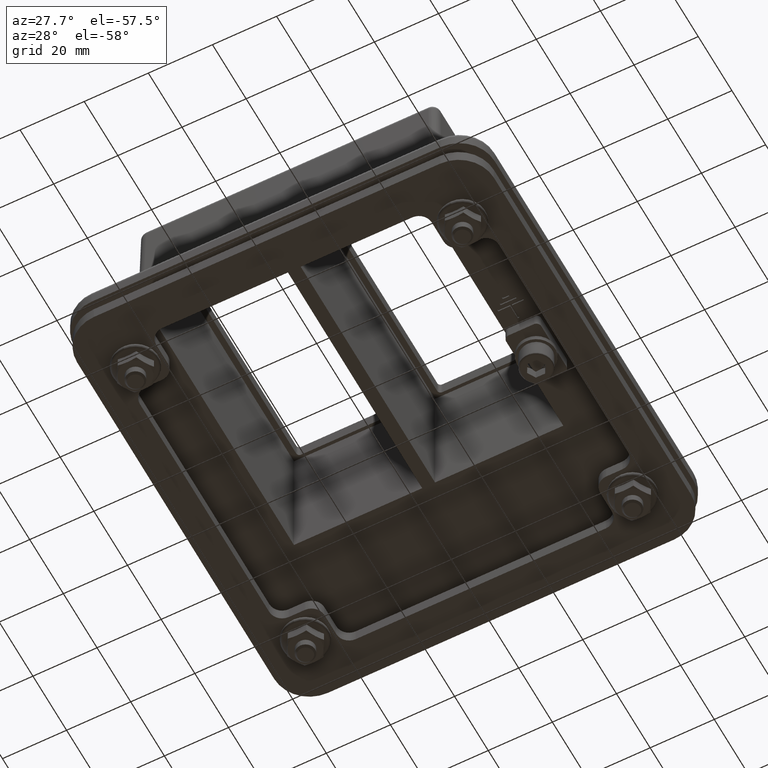
[diagram: clean part render]
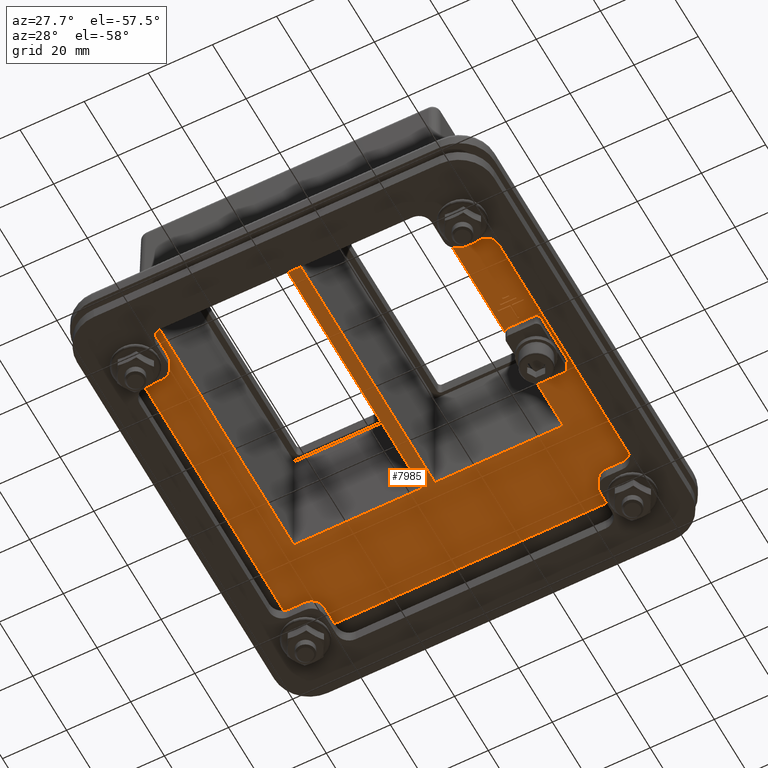
[diagram: same view with one face highlighted and labeled with its STEP entity id]
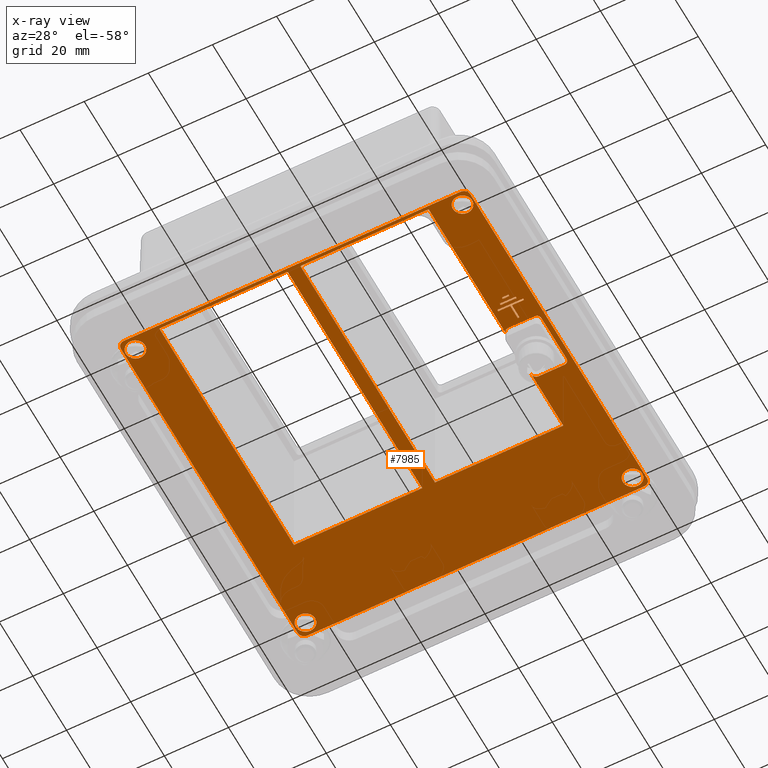
[diagram: x-ray of the same camera — body ghosted, the highlighted face saturated]
A machine part, auxiliary view. The second image highlights one B-rep face of the part: STEP entity #7985.
The next image is the same camera in x-ray: the body ghosted, the highlighted face saturated — about 0% of this face is hidden behind the body in this view.
In plain terms, the highlighted planar face has unit normal (0, 0, -1).
Its self-contained STEP definition (entity closure, byte-faithful):
#181=ELLIPSE('',#8621,1.50011423298243,1.5);
#183=ELLIPSE('',#8624,1.50011423298243,1.5);
#185=ELLIPSE('',#8628,1.50011423298243,1.5);
#187=ELLIPSE('',#8631,1.50011423298243,1.5);
#802=LINE('',#14308,#1446);
#805=LINE('',#14313,#1449);
#807=LINE('',#14317,#1451);
#809=LINE('',#14321,#1453);
#811=LINE('',#14325,#1455);
#813=LINE('',#14329,#1457);
#815=LINE('',#14333,#1459);
#817=LINE('',#14336,#1461);
#822=LINE('',#14349,#1466);
#825=LINE('',#14354,#1469);
#827=LINE('',#14358,#1471);
#829=LINE('',#14361,#1473);
#834=LINE('',#14374,#1478);
#837=LINE('',#14379,#1481);
#839=LINE('',#14383,#1483);
#841=LINE('',#14386,#1485);
#842=LINE('',#14390,#1486);
#848=LINE('',#14410,#1492);
#856=LINE('',#14434,#1500);
#863=LINE('',#14447,#1507);
#864=LINE('',#14449,#1508);
#875=LINE('',#14475,#1519);
#877=LINE('',#14479,#1521);
#879=LINE('',#14485,#1523);
#882=LINE('',#14491,#1526);
#911=LINE('',#14558,#1555);
#912=LINE('',#14564,#1556);
#913=LINE('',#14568,#1557);
#914=LINE('',#14572,#1558);
#915=LINE('',#14575,#1559);
#916=LINE('',#14576,#1560);
#917=LINE('',#14577,#1561);
#1446=VECTOR('',#10342,10.);
#1449=VECTOR('',#10347,10.);
#1451=VECTOR('',#10351,10.);
#1453=VECTOR('',#10355,10.);
#1455=VECTOR('',#10359,10.);
#1457=VECTOR('',#10363,10.);
#1459=VECTOR('',#10367,10.);
#1461=VECTOR('',#10371,10.);
#1466=VECTOR('',#10380,10.);
#1469=VECTOR('',#10385,10.);
#1471=VECTOR('',#10389,10.);
#1473=VECTOR('',#10393,10.);
#1478=VECTOR('',#10402,10.);
#1481=VECTOR('',#10407,10.);
#1483=VECTOR('',#10411,10.);
#1485=VECTOR('',#10415,10.);
#1486=VECTOR('',#10418,10.);
#1492=VECTOR('',#10438,10.);
#1500=VECTOR('',#10460,10.);
#1507=VECTOR('',#10471,10.);
#1508=VECTOR('',#10472,10.);
#1519=VECTOR('',#10493,10.);
#1521=VECTOR('',#10497,10.);
#1523=VECTOR('',#10501,10.);
#1526=VECTOR('',#10506,10.);
#1555=VECTOR('',#10585,10.);
#1556=VECTOR('',#10590,10.);
#1557=VECTOR('',#10593,10.);
#1558=VECTOR('',#10596,10.);
#1559=VECTOR('',#10599,10.);
#1560=VECTOR('',#10600,10.);
#1561=VECTOR('',#10601,10.);
#1747=FACE_BOUND('',#2650,.T.);
#1748=FACE_BOUND('',#2651,.T.);
#1749=FACE_BOUND('',#2652,.T.);
#1750=FACE_BOUND('',#2653,.T.);
#1751=FACE_BOUND('',#2654,.T.);
#1752=FACE_BOUND('',#2655,.T.);
#1753=FACE_BOUND('',#2656,.T.);
#1754=FACE_BOUND('',#2657,.T.);
#1755=FACE_BOUND('',#2658,.T.);
#2170=FACE_OUTER_BOUND('',#2649,.T.);
#2649=EDGE_LOOP('',(#6714,#6715,#6716,#6717,#6718,#6719,#6720,#6721));
#2650=EDGE_LOOP('',(#6722));
#2651=EDGE_LOOP('',(#6723));
#2652=EDGE_LOOP('',(#6724));
#2653=EDGE_LOOP('',(#6725));
#2654=EDGE_LOOP('',(#6726,#6727,#6728,#6729));
#2655=EDGE_LOOP('',(#6730,#6731,#6732,#6733));
#2656=EDGE_LOOP('',(#6734,#6735,#6736,#6737));
#2657=EDGE_LOOP('',(#6738,#6739,#6740,#6741,#6742,#6743,#6744,#6745));
#2658=EDGE_LOOP('',(#6746,#6747,#6748,#6749,#6750,#6751,#6752,#6753,#6754,
#6755,#6756,#6757));
#2705=CIRCLE('',#8068,3.);
#2737=CIRCLE('',#8118,3.);
#2750=CIRCLE('',#8148,3.);
#2783=CIRCLE('',#8235,3.);
#2926=CIRCLE('',#8670,2.);
#2927=CIRCLE('',#8671,1.99999999999999);
#2928=CIRCLE('',#8672,1.99999999999999);
#2929=CIRCLE('',#8673,1.99999999999999);
#2969=VERTEX_POINT('',#10840);
#3028=VERTEX_POINT('',#11027);
#3052=VERTEX_POINT('',#11143);
#3112=VERTEX_POINT('',#11404);
#3518=VERTEX_POINT('',#14306);
#3519=VERTEX_POINT('',#14307);
#3520=VERTEX_POINT('',#14312);
#3521=VERTEX_POINT('',#14316);
#3522=VERTEX_POINT('',#14320);
#3523=VERTEX_POINT('',#14324);
#3524=VERTEX_POINT('',#14328);
#3525=VERTEX_POINT('',#14332);
#3530=VERTEX_POINT('',#14347);
#3531=VERTEX_POINT('',#14348);
#3532=VERTEX_POINT('',#14353);
#3533=VERTEX_POINT('',#14357);
#3538=VERTEX_POINT('',#14372);
#3539=VERTEX_POINT('',#14373);
#3540=VERTEX_POINT('',#14378);
#3541=VERTEX_POINT('',#14382);
#3542=VERTEX_POINT('',#14388);
#3543=VERTEX_POINT('',#14389);
#3546=VERTEX_POINT('',#14397);
#3548=VERTEX_POINT('',#14403);
#3550=VERTEX_POINT('',#14409);
#3554=VERTEX_POINT('',#14419);
#3556=VERTEX_POINT('',#14425);
#3557=VERTEX_POINT('',#14426);
#3563=VERTEX_POINT('',#14445);
#3564=VERTEX_POINT('',#14448);
#3574=VERTEX_POINT('',#14473);
#3575=VERTEX_POINT('',#14477);
#3577=VERTEX_POINT('',#14482);
#3578=VERTEX_POINT('',#14484);
#3580=VERTEX_POINT('',#14490);
#3593=VERTEX_POINT('',#14556);
#3594=VERTEX_POINT('',#14560);
#3595=VERTEX_POINT('',#14561);
#3596=VERTEX_POINT('',#14563);
#3597=VERTEX_POINT('',#14565);
#3598=VERTEX_POINT('',#14567);
#3599=VERTEX_POINT('',#14569);
#3600=VERTEX_POINT('',#14571);
#3601=VERTEX_POINT('',#14573);
#3676=EDGE_CURVE('',#2969,#2969,#2705,.T.);
#3750=EDGE_CURVE('',#3028,#3028,#2737,.T.);
#3789=EDGE_CURVE('',#3052,#3052,#2750,.T.);
#3900=EDGE_CURVE('',#3112,#3112,#2783,.T.);
#4536=EDGE_CURVE('',#3518,#3519,#802,.T.);
#4539=EDGE_CURVE('',#3519,#3520,#805,.T.);
#4541=EDGE_CURVE('',#3520,#3521,#807,.T.);
#4543=EDGE_CURVE('',#3521,#3522,#809,.T.);
#4545=EDGE_CURVE('',#3522,#3523,#811,.T.);
#4547=EDGE_CURVE('',#3523,#3524,#813,.T.);
#4549=EDGE_CURVE('',#3524,#3525,#815,.T.);
#4551=EDGE_CURVE('',#3525,#3518,#817,.T.);
#4556=EDGE_CURVE('',#3530,#3531,#822,.T.);
#4559=EDGE_CURVE('',#3531,#3532,#825,.T.);
#4561=EDGE_CURVE('',#3532,#3533,#827,.T.);
#4563=EDGE_CURVE('',#3533,#3530,#829,.T.);
#4568=EDGE_CURVE('',#3538,#3539,#834,.T.);
#4571=EDGE_CURVE('',#3539,#3540,#837,.T.);
#4573=EDGE_CURVE('',#3540,#3541,#839,.T.);
#4575=EDGE_CURVE('',#3541,#3538,#841,.T.);
#4576=EDGE_CURVE('',#3542,#3543,#842,.T.);
#4580=EDGE_CURVE('',#3543,#3546,#181,.T.);
#4583=EDGE_CURVE('',#3548,#3542,#183,.T.);
#4586=EDGE_CURVE('',#3546,#3550,#848,.T.);
#4591=EDGE_CURVE('',#3550,#3554,#185,.T.);
#4594=EDGE_CURVE('',#3556,#3557,#187,.T.);
#4598=EDGE_CURVE('',#3554,#3556,#856,.T.);
#4605=EDGE_CURVE('',#3563,#3548,#863,.T.);
#4606=EDGE_CURVE('',#3557,#3564,#864,.T.);
#4620=EDGE_CURVE('',#3574,#3564,#875,.T.);
#4622=EDGE_CURVE('',#3575,#3574,#877,.T.);
#4624=EDGE_CURVE('',#3578,#3577,#879,.T.);
#4627=EDGE_CURVE('',#3580,#3578,#882,.T.);
#4660=EDGE_CURVE('',#3593,#3580,#911,.T.);
#4661=EDGE_CURVE('',#3594,#3595,#2926,.T.);
#4662=EDGE_CURVE('',#3595,#3596,#912,.T.);
#4663=EDGE_CURVE('',#3596,#3597,#2927,.T.);
#4664=EDGE_CURVE('',#3597,#3598,#913,.T.);
#4665=EDGE_CURVE('',#3598,#3599,#2928,.T.);
#4666=EDGE_CURVE('',#3599,#3600,#914,.T.);
#4667=EDGE_CURVE('',#3600,#3601,#2929,.T.);
#4668=EDGE_CURVE('',#3601,#3594,#915,.T.);
#4669=EDGE_CURVE('',#3577,#3593,#916,.T.);
#4670=EDGE_CURVE('',#3563,#3575,#917,.T.);
#6714=ORIENTED_EDGE('',*,*,#4661,.T.);
#6715=ORIENTED_EDGE('',*,*,#4662,.T.);
#6716=ORIENTED_EDGE('',*,*,#4663,.T.);
#6717=ORIENTED_EDGE('',*,*,#4664,.T.);
#6718=ORIENTED_EDGE('',*,*,#4665,.T.);
#6719=ORIENTED_EDGE('',*,*,#4666,.T.);
#6720=ORIENTED_EDGE('',*,*,#4667,.T.);
#6721=ORIENTED_EDGE('',*,*,#4668,.T.);
#6722=ORIENTED_EDGE('',*,*,#3750,.T.);
#6723=ORIENTED_EDGE('',*,*,#3676,.T.);
#6724=ORIENTED_EDGE('',*,*,#3789,.T.);
#6725=ORIENTED_EDGE('',*,*,#3900,.T.);
#6726=ORIENTED_EDGE('',*,*,#4669,.T.);
#6727=ORIENTED_EDGE('',*,*,#4660,.T.);
#6728=ORIENTED_EDGE('',*,*,#4627,.T.);
#6729=ORIENTED_EDGE('',*,*,#4624,.T.);
#6730=ORIENTED_EDGE('',*,*,#4575,.T.);
#6731=ORIENTED_EDGE('',*,*,#4568,.T.);
#6732=ORIENTED_EDGE('',*,*,#4571,.T.);
#6733=ORIENTED_EDGE('',*,*,#4573,.T.);
#6734=ORIENTED_EDGE('',*,*,#4563,.T.);
#6735=ORIENTED_EDGE('',*,*,#4556,.T.);
#6736=ORIENTED_EDGE('',*,*,#4559,.T.);
#6737=ORIENTED_EDGE('',*,*,#4561,.T.);
#6738=ORIENTED_EDGE('',*,*,#4551,.T.);
#6739=ORIENTED_EDGE('',*,*,#4536,.T.);
#6740=ORIENTED_EDGE('',*,*,#4539,.T.);
#6741=ORIENTED_EDGE('',*,*,#4541,.T.);
#6742=ORIENTED_EDGE('',*,*,#4543,.T.);
#6743=ORIENTED_EDGE('',*,*,#4545,.T.);
#6744=ORIENTED_EDGE('',*,*,#4547,.T.);
#6745=ORIENTED_EDGE('',*,*,#4549,.T.);
#6746=ORIENTED_EDGE('',*,*,#4670,.T.);
#6747=ORIENTED_EDGE('',*,*,#4622,.T.);
#6748=ORIENTED_EDGE('',*,*,#4620,.T.);
#6749=ORIENTED_EDGE('',*,*,#4606,.F.);
#6750=ORIENTED_EDGE('',*,*,#4594,.F.);
#6751=ORIENTED_EDGE('',*,*,#4598,.F.);
#6752=ORIENTED_EDGE('',*,*,#4591,.F.);
#6753=ORIENTED_EDGE('',*,*,#4586,.F.);
#6754=ORIENTED_EDGE('',*,*,#4580,.F.);
#6755=ORIENTED_EDGE('',*,*,#4576,.F.);
#6756=ORIENTED_EDGE('',*,*,#4583,.F.);
#6757=ORIENTED_EDGE('',*,*,#4605,.F.);
#7110=PLANE('',#8669);
#7985=ADVANCED_FACE('',(#2170,#1747,#1748,#1749,#1750,#1751,#1752,#1753,
#1754,#1755),#7110,.T.);
#8068=AXIS2_PLACEMENT_3D('',#10842,#8788,#8789);
#8118=AXIS2_PLACEMENT_3D('',#11029,#8912,#8913);
#8148=AXIS2_PLACEMENT_3D('',#11145,#8980,#8981);
#8235=AXIS2_PLACEMENT_3D('',#11406,#9214,#9215);
#8621=AXIS2_PLACEMENT_3D('',#14398,#10424,#10425);
#8624=AXIS2_PLACEMENT_3D('',#14404,#10431,#10432);
#8628=AXIS2_PLACEMENT_3D('',#14420,#10445,#10446);
#8631=AXIS2_PLACEMENT_3D('',#14427,#10452,#10453);
#8669=AXIS2_PLACEMENT_3D('',#14559,#10586,#10587);
#8670=AXIS2_PLACEMENT_3D('',#14562,#10588,#10589);
#8671=AXIS2_PLACEMENT_3D('',#14566,#10591,#10592);
#8672=AXIS2_PLACEMENT_3D('',#14570,#10594,#10595);
#8673=AXIS2_PLACEMENT_3D('',#14574,#10597,#10598);
#8788=DIRECTION('center_axis',(-1.22464679914735E-16,0.,1.));
#8789=DIRECTION('ref_axis',(0.488677426148779,0.872464539779471,5.9845724574867E-17));
#8912=DIRECTION('center_axis',(-1.22464679914735E-16,0.,1.));
#8913=DIRECTION('ref_axis',(0.788128633980701,0.615510565546778,9.65179208920842E-17));
#8980=DIRECTION('center_axis',(-1.22464679914735E-16,0.,1.));
#8981=DIRECTION('ref_axis',(-1.14037960963934E-47,1.,-2.56790659251631E-33));
#9214=DIRECTION('center_axis',(-1.22464679914735E-16,0.,1.));
#9215=DIRECTION('ref_axis',(-6.84227765783602E-48,1.,-2.56790659251631E-33));
#10342=DIRECTION('',(-1.,4.44089209850056E-15,-1.22464679914735E-16));
#10347=DIRECTION('',(0.,-1.,0.));
#10351=DIRECTION('',(-1.,8.32667268468869E-16,-1.22464679914735E-16));
#10355=DIRECTION('',(-1.77635683940026E-14,-1.,-2.17540971751504E-30));
#10359=DIRECTION('',(1.,-8.32667268468868E-16,1.22464679914735E-16));
#10363=DIRECTION('',(0.,1.,0.));
#10367=DIRECTION('',(-1.,8.32667268468869E-16,-1.22464679914735E-16));
#10371=DIRECTION('',(0.,1.,0.));
#10380=DIRECTION('',(0.,-1.,0.));
#10385=DIRECTION('',(1.,-8.88178419700128E-16,1.22464679914735E-16));
#10389=DIRECTION('',(0.,1.,0.));
#10393=DIRECTION('',(-1.,8.88178419700128E-16,-1.22464679914735E-16));
#10402=DIRECTION('',(0.,1.,0.));
#10407=DIRECTION('',(-1.,1.11022302462517E-15,-1.22464679914735E-16));
#10411=DIRECTION('',(-1.77635683940023E-14,-1.,-2.175409717515E-30));
#10415=DIRECTION('',(1.,0.,1.22464679914735E-16));
#10418=DIRECTION('',(1.,0.,1.22464679914735E-16));
#10424=DIRECTION('center_axis',(1.22464679914735E-16,0.,-1.));
#10425=DIRECTION('ref_axis',(0.707106781186547,0.707106781186548,8.65956056235493E-17));
#10431=DIRECTION('center_axis',(1.22464679914735E-16,0.,-1.));
#10432=DIRECTION('ref_axis',(-0.707106781186549,0.707106781186546,-8.65956056235495E-17));
#10438=DIRECTION('',(0.,-1.,0.));
#10445=DIRECTION('center_axis',(1.22464679914735E-16,0.,-1.));
#10446=DIRECTION('ref_axis',(0.707106781186547,-0.707106781186548,8.65956056235493E-17));
#10452=DIRECTION('center_axis',(1.22464679914735E-16,0.,-1.));
#10453=DIRECTION('ref_axis',(-0.707106781186547,-0.707106781186548,-8.65956056235493E-17));
#10460=DIRECTION('',(-1.,2.01858731750028E-16,-1.22464679914735E-16));
#10471=DIRECTION('',(0.,-1.,0.));
#10472=DIRECTION('',(0.,-1.,0.));
#10493=DIRECTION('',(1.,-2.22044604925031E-16,1.22464679914735E-16));
#10497=DIRECTION('',(0.,-1.,0.));
#10501=DIRECTION('',(0.,1.,0.));
#10506=DIRECTION('',(1.,0.,1.22464679914735E-16));
#10585=DIRECTION('',(0.,-1.,0.));
#10586=DIRECTION('center_axis',(1.22464679914735E-16,0.,-1.));
#10587=DIRECTION('ref_axis',(-1.,0.,-1.22464679914735E-16));
#10588=DIRECTION('center_axis',(1.22464679914735E-16,0.,-1.));
#10589=DIRECTION('ref_axis',(-2.77555756156289E-16,-1.,-3.39907768361723E-32));
#10590=DIRECTION('',(6.34413156928661E-17,-1.,7.76932041969652E-33));
#10591=DIRECTION('center_axis',(1.22464679914735E-16,0.,-1.));
#10592=DIRECTION('ref_axis',(-1.,0.,-1.22464679914735E-16));
#10593=DIRECTION('',(-1.,1.69176841847643E-16,-1.22464679914735E-16));
#10594=DIRECTION('center_axis',(1.22464679914735E-16,0.,-1.));
#10595=DIRECTION('ref_axis',(0.,1.,0.));
#10596=DIRECTION('',(0.,1.,0.));
#10597=DIRECTION('center_axis',(1.22464679914735E-16,0.,-1.));
#10598=DIRECTION('ref_axis',(1.,0.,1.22464679914735E-16));
#10599=DIRECTION('',(1.,-2.53765262771464E-16,1.22464679914735E-16));
#10600=DIRECTION('',(-1.,0.,-1.22464679914735E-16));
#10601=DIRECTION('',(-1.,0.,-1.22464679914735E-16));
#10840=CARTESIAN_POINT('',(-52.4660322784463,-53.1173936193384,-43.));
#10842=CARTESIAN_POINT('Origin',(-51.,-50.5,-43.));
#11027=CARTESIAN_POINT('',(48.6356140980579,-52.3465316966403,-43.));
#11029=CARTESIAN_POINT('Origin',(51.,-50.5,-43.));
#11143=CARTESIAN_POINT('',(51.,47.5,-43.));
#11145=CARTESIAN_POINT('Origin',(51.,50.5,-43.));
#11404=CARTESIAN_POINT('',(-51.,47.5,-43.));
#11406=CARTESIAN_POINT('Origin',(-51.,50.5,-43.));
#14306=CARTESIAN_POINT('',(47.75,-10.4956556052975,-43.));
#14307=CARTESIAN_POINT('',(47.25,-10.4956556052975,-43.));
#14308=CARTESIAN_POINT('',(23.875,-10.4956556052974,-43.));
#14312=CARTESIAN_POINT('',(47.25,-14.9956556052975,-43.));
#14313=CARTESIAN_POINT('',(47.25,-5.24782780264873,-43.));
#14316=CARTESIAN_POINT('',(43.5,-14.9956556052975,-43.));
#14317=CARTESIAN_POINT('',(23.625,-14.9956556052975,-43.));
#14320=CARTESIAN_POINT('',(43.5,-15.4956556052975,-43.));
#14321=CARTESIAN_POINT('',(43.5000000000001,-7.49782780264912,-43.));
#14324=CARTESIAN_POINT('',(51.5,-15.4956556052975,-43.));
#14325=CARTESIAN_POINT('',(21.75,-15.4956556052975,-43.));
#14328=CARTESIAN_POINT('',(51.5,-14.9956556052975,-43.));
#14329=CARTESIAN_POINT('',(51.5,-7.74782780264874,-43.));
#14332=CARTESIAN_POINT('',(47.75,-14.9956556052975,-43.));
#14333=CARTESIAN_POINT('',(25.75,-14.9956556052975,-43.));
#14336=CARTESIAN_POINT('',(47.75,-7.49782780264874,-43.));
#14347=CARTESIAN_POINT('',(45.,-16.4956556052975,-43.));
#14348=CARTESIAN_POINT('',(45.,-16.9956556052975,-43.));
#14349=CARTESIAN_POINT('',(45.,-8.24782780264874,-43.));
#14353=CARTESIAN_POINT('',(50.,-16.9956556052975,-43.));
#14354=CARTESIAN_POINT('',(22.5,-16.9956556052975,-43.));
#14357=CARTESIAN_POINT('',(50.,-16.4956556052975,-43.));
#14358=CARTESIAN_POINT('',(50.,-8.49782780264874,-43.));
#14361=CARTESIAN_POINT('',(25.,-16.4956556052975,-43.));
#14372=CARTESIAN_POINT('',(48.5,-18.4956556052975,-43.));
#14373=CARTESIAN_POINT('',(48.5,-17.9956556052975,-43.));
#14374=CARTESIAN_POINT('',(48.5,-9.24782780264874,-43.));
#14378=CARTESIAN_POINT('',(46.5,-17.9956556052975,-43.));
#14379=CARTESIAN_POINT('',(24.25,-17.9956556052975,-43.));
#14382=CARTESIAN_POINT('',(46.5,-18.4956556052975,-43.));
#14383=CARTESIAN_POINT('',(46.5000000000002,-8.99782780264915,-43.));
#14386=CARTESIAN_POINT('',(23.25,-18.4956556052975,-43.));
#14388=CARTESIAN_POINT('',(43.4999428845963,9.00000000000001,-43.));
#14389=CARTESIAN_POINT('',(51.5000571154038,9.,-43.));
#14390=CARTESIAN_POINT('',(21.,9.,-43.));
#14397=CARTESIAN_POINT('',(53.,7.50005711540374,-43.));
#14398=CARTESIAN_POINT('Origin',(51.4999428824214,7.4999428824214,-43.));
#14403=CARTESIAN_POINT('',(42.,7.50005711540375,-43.));
#14404=CARTESIAN_POINT('Origin',(43.5000571175786,7.4999428824214,-43.));
#14409=CARTESIAN_POINT('',(53.,-7.50005711540375,-43.));
#14410=CARTESIAN_POINT('',(53.,4.5,-43.));
#14419=CARTESIAN_POINT('',(51.5000571154038,-9.,-43.));
#14420=CARTESIAN_POINT('Origin',(51.4999428824214,-7.4999428824214,-43.));
#14425=CARTESIAN_POINT('',(43.4999428845963,-9.,-43.));
#14426=CARTESIAN_POINT('',(42.,-7.50005711540374,-43.));
#14427=CARTESIAN_POINT('Origin',(43.5000571175787,-7.49994288242139,-43.));
#14434=CARTESIAN_POINT('',(26.5,-9.,-43.));
#14445=CARTESIAN_POINT('',(42.,26.5,-43.));
#14447=CARTESIAN_POINT('',(42.,-26.75,-43.));
#14448=CARTESIAN_POINT('',(42.,-53.5,-43.));
#14449=CARTESIAN_POINT('',(42.,-26.75,-43.));
#14473=CARTESIAN_POINT('',(1.99999999999999,-53.5,-43.));
#14475=CARTESIAN_POINT('',(0.999999999999992,-53.5,-43.));
#14477=CARTESIAN_POINT('',(1.99999999999999,26.5,-43.));
#14479=CARTESIAN_POINT('',(1.99999999999999,26.75,-43.));
#14482=CARTESIAN_POINT('',(-2.00000000000002,26.5,-43.));
#14484=CARTESIAN_POINT('',(-2.00000000000001,-53.5,-43.));
#14485=CARTESIAN_POINT('',(-2.00000000000001,-26.75,-43.));
#14490=CARTESIAN_POINT('',(-42.,-53.5,-43.));
#14491=CARTESIAN_POINT('',(-21.,-53.5,-43.));
#14556=CARTESIAN_POINT('',(-42.,26.5,-43.));
#14558=CARTESIAN_POINT('',(-42.,26.75,-43.));
#14559=CARTESIAN_POINT('Origin',(22.,40.,-43.));
#14560=CARTESIAN_POINT('',(52.5,54.5,-43.));
#14561=CARTESIAN_POINT('',(54.5,52.5,-43.));
#14562=CARTESIAN_POINT('Origin',(52.5,52.5,-43.));
#14563=CARTESIAN_POINT('',(54.5,-52.5,-43.));
#14564=CARTESIAN_POINT('',(54.5,46.25,-43.));
#14565=CARTESIAN_POINT('',(52.5,-54.5,-43.));
#14566=CARTESIAN_POINT('Origin',(52.5,-52.5,-43.));
#14567=CARTESIAN_POINT('',(-52.5,-54.5,-43.));
#14568=CARTESIAN_POINT('',(37.25,-54.5,-43.));
#14569=CARTESIAN_POINT('',(-54.5,-52.5,-43.));
#14570=CARTESIAN_POINT('Origin',(-52.5,-52.5,-43.));
#14571=CARTESIAN_POINT('',(-54.5,52.5,-43.));
#14572=CARTESIAN_POINT('',(-54.5,-6.25,-43.));
#14573=CARTESIAN_POINT('',(-52.5,54.5,-43.));
#14574=CARTESIAN_POINT('Origin',(-52.5,52.5,-43.));
#14575=CARTESIAN_POINT('',(-15.25,54.5,-43.));
#14576=CARTESIAN_POINT('',(-2.00000000000002,26.5,-43.));
#14577=CARTESIAN_POINT('',(42.,26.5,-43.));